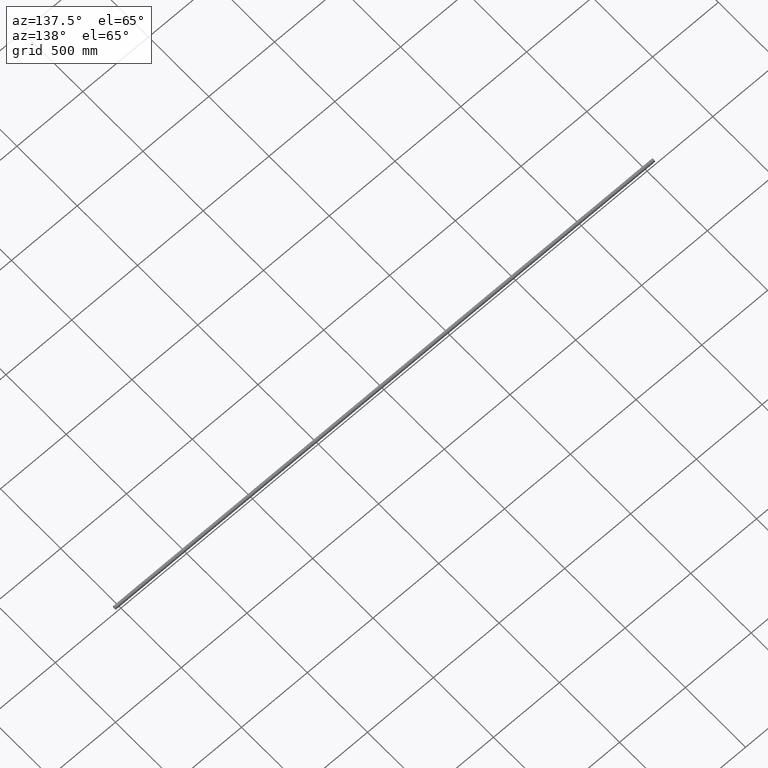
[diagram: clean part render]
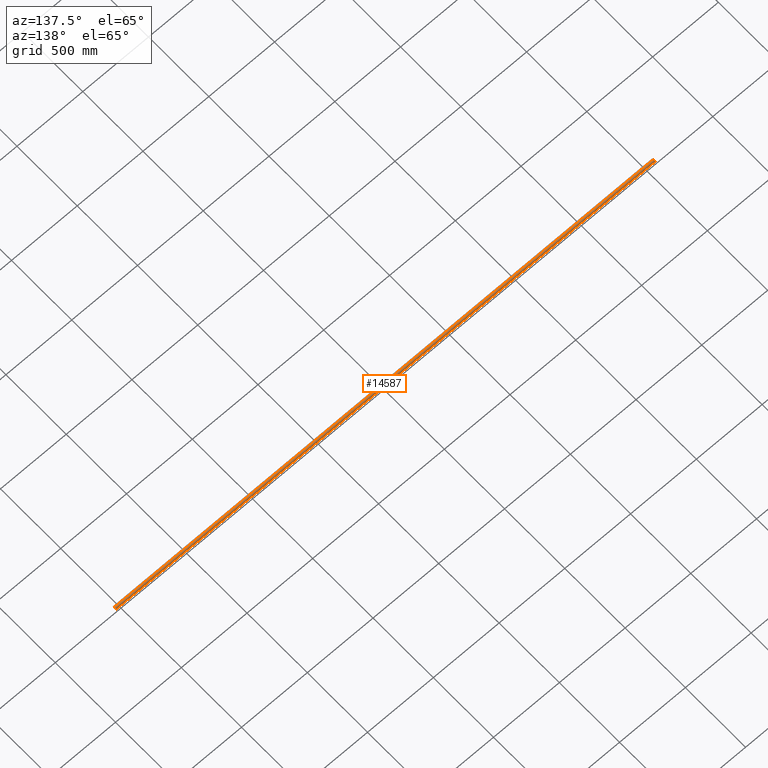
[diagram: same view with one face highlighted and labeled with its STEP entity id]
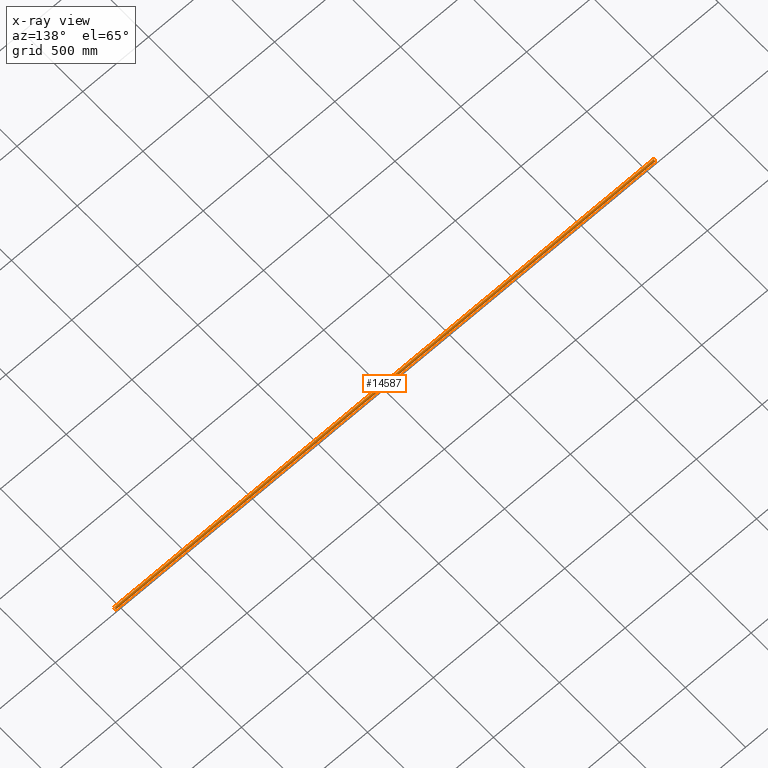
[diagram: x-ray of the same camera — body ghosted, the highlighted face saturated]
A machine part, auxiliary view. The second image highlights one B-rep face of the part: STEP entity #14587.
The next image is the same camera in x-ray: the body ghosted, the highlighted face saturated — about 0% of this face is hidden behind the body in this view.
In plain terms, the highlighted cylindrical surface (edge-blend (fillet) strip) has radius 12.5 mm, axis along (-1, -0, -0).
Its self-contained STEP definition (entity closure, byte-faithful):
#135 = CARTESIAN_POINT ( 'NONE',  ( 1879.555185361212400, 3.378139508022424600, -12.03495784066944600 ) ) ;
#379 = VERTEX_POINT ( 'NONE', #5927 ) ;
#427 = DIRECTION ( 'NONE',  ( -1.000000000000000000, -0.0000000000000000000, -0.0000000000000000000 ) ) ;
#707 = B_SPLINE_CURVE_WITH_KNOTS ( 'NONE', 3,
 ( #10632, #11692, #2149, #9310, #11746, #10578, #2294, #15306, #8070, #3405, #9264, #4516, #10525, #12975, #12921, #14165, #6928, #1287, #6139, #1226, #3664, #7132, #9617, #12060, #13234, #15561, #8423, #4866, #10778, #13285, #7286, #14578, #6027, #4712 ),
 .UNSPECIFIED., .F., .F.,
 ( 4, 2, 2, 2, 2, 2, 2, 2, 2, 2, 2, 2, 2, 2, 2, 2, 4 ),
 ( 0.01068048760817239500, 0.01134783680047168500, 0.01201518599277097800, 0.01268253518507026800, 0.01334988437736955900, 0.01401723356966884900, 0.01468458276196813900, 0.01535193195426743000, 0.01601928114656672000, 0.01668663033886601300, 0.01735397953116530100, 0.01802132872346459300, 0.01868867791576388200, 0.01935602710806317400, 0.02002337630036246700, 0.02069072549266175900, 0.02135807468496104700 ),
 .UNSPECIFIED. ) ;
#775 = CARTESIAN_POINT ( 'NONE',  ( -941.7041004218791600, 2.950570385327931700, -12.14744228481905900 ) ) ;
#780 = VERTEX_POINT ( 'NONE', #9551 ) ;
#830 = CARTESIAN_POINT ( 'NONE',  ( 939.5551853612123500, 3.378139508022326000, -12.03495784066947700 ) ) ;
#856 = CARTESIAN_POINT ( 'NONE',  ( -1881.704100421878800, 2.950570385328055200, -12.14744228481902900 ) ) ;
#888 = CARTESIAN_POINT ( 'NONE',  ( 942.9483656953227600, 1.707719232637206600, -12.38420091696254300 ) ) ;
#911 = CARTESIAN_POINT ( 'NONE',  ( -1883.377737069944000, 0.4480304431356929000, -12.49389157976499500 ) ) ;
#936 = CARTESIAN_POINT ( 'NONE',  ( 942.5616062947975700, 2.246627044520512300, -12.29748777373637700 ) ) ;
#963 = CARTESIAN_POINT ( 'NONE',  ( -1877.438393705202500, 2.246627044520734800, -12.29748777373633400 ) ) ;
#1011 = ORIENTED_EDGE ( 'NONE', *, *, #12591, .T. ) ;
#1035 = CARTESIAN_POINT ( 'NONE',  ( 1883.399999999999900, 1.530817149939125600E-015, -12.50000000000000000 ) ) ;
#1045 = CARTESIAN_POINT ( 'NONE',  ( -937.4383937052024300, 2.246627044520512300, -12.29748777373637700 ) ) ;
#1097 = CARTESIAN_POINT ( 'NONE',  ( -938.4871822743166400, 3.053142613515797500, -12.12172586120244800 ) ) ;
#1130 = CARTESIAN_POINT ( 'NONE',  ( 1881.707697899845900, 2.948301563049428700, -12.14797926367841200 ) ) ;
#1140 = CARTESIAN_POINT ( 'NONE',  ( -937.7518609685736200, 2.560279434377374500, -12.23603317420604600 ) ) ;
#1210 = CARTESIAN_POINT ( 'NONE',  ( 1876.599999999999900, -9.932824226667062300E-015, -12.50000000000000000 ) ) ;
#1226 = CARTESIAN_POINT ( 'NONE',  ( -0.8820550147423875700, 3.291149578720026400, -12.05903691066762000 ) ) ;
#1287 = CARTESIAN_POINT ( 'NONE',  ( -0.2234455537290499200, 3.400048205355200800, -12.02870201658427800 ) ) ;
#1404 = DIRECTION ( 'NONE',  ( 0.0000000000000000000, 0.0000000000000000000, 1.000000000000000000 ) ) ;
#1660 = EDGE_CURVE ( 'NONE', #7770, #9793, #6886, .T. ) ;
#1718 = VECTOR ( 'NONE', #7351, 1000.000000000000000 ) ;
#1733 = LINE ( 'NONE', #9927, #4185 ) ;
#1880 = CARTESIAN_POINT ( 'NONE',  ( 2050.000000000000000, 0.0000000000000000000, 0.0000000000000000000 ) ) ;
#1948 = CARTESIAN_POINT ( 'NONE',  ( -936.7098970917934400, 0.8865257729732174400, -12.47048403254628500 ) ) ;
#1951 = CARTESIAN_POINT ( 'NONE',  ( 943.4000000000000900, 0.2224906580846630300, -12.50000000000000000 ) ) ;
#1970 = VERTEX_POINT ( 'NONE', #13478 ) ;
#2007 = CARTESIAN_POINT ( 'NONE',  ( -940.8820550147422600, 3.291149578720000200, -12.05903691066762600 ) ) ;
#2011 = CARTESIAN_POINT ( 'NONE',  ( 941.5128177256830200, 3.053142613515797500, -12.12172586120244800 ) ) ;
#2115 = CARTESIAN_POINT ( 'NONE',  ( 936.9467577992729700, 1.512253423253397500, -12.40989427573226300 ) ) ;
#2140 = CARTESIAN_POINT ( 'NONE',  ( 2050.000000000000000, 1.530808498934191500E-015, -12.50000000000000000 ) ) ;
#2149 = CARTESIAN_POINT ( 'NONE',  ( 3.378280758540311600, 0.4448867375077679700, -12.49403760771222100 ) ) ;
#2164 = CARTESIAN_POINT ( 'NONE',  ( 1881.512817725682900, 3.053142613515909000, -12.12172586120242100 ) ) ;
#2193 = CARTESIAN_POINT ( 'NONE',  ( -1879.114633743551200, 3.290199395220273700, -12.05929658612620200 ) ) ;
#2283 = EDGE_CURVE ( 'NONE', #15213, #1970, #12888, .T. ) ;
#2287 = FACE_OUTER_BOUND ( 'NONE', #6494, .T. ) ;
#2294 = CARTESIAN_POINT ( 'NONE',  ( 2.948365695323054600, 1.707719232637258800, -12.38420091696254100 ) ) ;
#2362 = CARTESIAN_POINT ( 'NONE',  ( 1882.561606294797700, 2.246627044520734800, -12.29748777373633400 ) ) ;
#2466 = DIRECTION ( 'NONE',  ( -1.000000000000000000, -0.0000000000000000000, -0.0000000000000000000 ) ) ;
#2484 = EDGE_CURVE ( 'NONE', #1970, #2924, #9575, .T. ) ;
#2691 = VECTOR ( 'NONE', #14098, 1000.000000000000000 ) ;
#2790 = LINE ( 'NONE', #8701, #7315 ) ;
#2924 = VERTEX_POINT ( 'NONE', #8900 ) ;
#2995 = EDGE_CURVE ( 'NONE', #379, #6547, #6219, .T. ) ;
#3128 = VERTEX_POINT ( 'NONE', #8077 ) ;
#3134 = ORIENTED_EDGE ( 'NONE', *, *, #6398, .T. ) ;
#3221 = CARTESIAN_POINT ( 'NONE',  ( -942.9488224034905700, 1.707024174918659000, -12.38430592481709500 ) ) ;
#3223 = CARTESIAN_POINT ( 'NONE',  ( 936.6000000000000200, 1.240253457150525300E-014, -12.50000000000000000 ) ) ;
#3244 = CARTESIAN_POINT ( 'NONE',  ( -1881.099029707848800, 3.225114317319371700, -12.07710089060663700 ) ) ;
#3274 = CARTESIAN_POINT ( 'NONE',  ( 941.7076978998460400, 2.948301563049304400, -12.14797926367844400 ) ) ;
#3298 = CARTESIAN_POINT ( 'NONE',  ( -1879.775089838301500, 3.399951636918634900, -12.02872931232272400 ) ) ;
#3327 = CARTESIAN_POINT ( 'NONE',  ( 940.8853662564488300, 3.290199395220138700, -12.05929658612623900 ) ) ;
#3351 = CARTESIAN_POINT ( 'NONE',  ( -1878.901327185809100, 3.225401577628083300, -12.07703201683446500 ) ) ;
#3372 = CARTESIAN_POINT ( 'NONE',  ( 1880.885366256448800, 3.290199395220273700, -12.05929658612620200 ) ) ;
#3402 = CARTESIAN_POINT ( 'NONE',  ( -1880.444814638787900, 3.378139508022424600, -12.03495784066944600 ) ) ;
#3405 = CARTESIAN_POINT ( 'NONE',  ( 2.248139031426001900, 2.560279434377429600, -12.23603317420603700 ) ) ;
#3419 = CARTESIAN_POINT ( 'NONE',  ( 1882.701596913804900, 2.076183846916918700, -12.32778155075017400 ) ) ;
#3475 = CARTESIAN_POINT ( 'NONE',  ( 1883.399999999999600, 0.2224906580846714400, -12.50000000000000000 ) ) ;
#3487 = CARTESIAN_POINT ( 'NONE',  ( -942.2469418888275600, 2.561224429050289700, -12.23582231181098500 ) ) ;
#3581 = CARTESIAN_POINT ( 'NONE',  ( -939.1146337435510500, 3.290199395220138700, -12.05929658612623900 ) ) ;
#3664 = CARTESIAN_POINT ( 'NONE',  ( -1.099029707848881500, 3.225114317319354400, -12.07710089060664600 ) ) ;
#3677 = CARTESIAN_POINT ( 'NONE',  ( 1876.622262930056400, 0.4480304431356929000, -12.49389157976499500 ) ) ;
#3726 = CARTESIAN_POINT ( 'NONE',  ( 1879.776554446271100, 3.400048205355289600, -12.02870201658424800 ) ) ;
#3728 = VERTEX_POINT ( 'NONE', #12229 ) ;
#3775 = CARTESIAN_POINT ( 'NONE',  ( 1877.441070737253500, 2.249555390737002700, -12.29693940646133000 ) ) ;
#3841 = ORIENTED_EDGE ( 'NONE', *, *, #1660, .T. ) ;
#4173 = VECTOR ( 'NONE', #12690, 1000.000000000000000 ) ;
#4185 = VECTOR ( 'NONE', #427, 1000.000000000000000 ) ;
#4208 = ORIENTED_EDGE ( 'NONE', *, *, #2484, .T. ) ;
#4397 = ORIENTED_EDGE ( 'NONE', *, *, #11843, .T. ) ;
#4424 = CARTESIAN_POINT ( 'NONE',  ( -943.3777370699432400, 0.4480304431356896300, -12.49389157976499500 ) ) ;
#4454 = CARTESIAN_POINT ( 'NONE',  ( -1877.925459137238700, 2.702775320397860600, -12.20495341510522500 ) ) ;
#4482 = CARTESIAN_POINT ( 'NONE',  ( 937.2987356385385700, 2.076693513877929200, -12.32770492924915700 ) ) ;
#4509 = CARTESIAN_POINT ( 'NONE',  ( -1882.246941888827700, 2.561224429050425100, -12.23582231181095600 ) ) ;
#4516 = CARTESIAN_POINT ( 'NONE',  ( 1.707697899846059700, 2.948301563049316300, -12.14797926367844200 ) ) ;
#4535 = CARTESIAN_POINT ( 'NONE',  ( 943.3999999999998600, 1.530817147818667500E-015, -12.50000000000000000 ) ) ;
#4610 = CARTESIAN_POINT ( 'NONE',  ( -1882.701264361461700, 2.076693513877993600, -12.32770492924914200 ) ) ;
#4691 = CARTESIAN_POINT ( 'NONE',  ( -2050.000000000000000, 0.0000000000000000000, 0.0000000000000000000 ) ) ;
#4712 = CARTESIAN_POINT ( 'NONE',  ( -3.399999999999987900, -3.085611381634476200E-019, -12.50000000000000000 ) ) ;
#4738 = CARTESIAN_POINT ( 'NONE',  ( -937.9254591372384800, 2.702775320397728700, -12.20495341510524800 ) ) ;
#4788 = EDGE_CURVE ( 'NONE', #379, #3728, #2790, .T. ) ;
#4866 = CARTESIAN_POINT ( 'NONE',  ( -2.948822403490601700, 1.707024174918695600, -12.38430592481708800 ) ) ;
#4882 = CARTESIAN_POINT ( 'NONE',  ( 1877.298735638538300, 2.076693513877993600, -12.32770492924914200 ) ) ;
#4982 = CARTESIAN_POINT ( 'NONE',  ( 1876.600000000000100, 0.2257309346313159700, -12.50000000000000200 ) ) ;
#5013 = ORIENTED_EDGE ( 'NONE', *, *, #5079, .F. ) ;
#5079 = EDGE_CURVE ( 'NONE', #6547, #6556, #5115, .T. ) ;
#5115 = LINE ( 'NONE', #15175, #4173 ) ;
#5421 = ORIENTED_EDGE ( 'NONE', *, *, #10916, .T. ) ;
#5497 = ORIENTED_EDGE ( 'NONE', *, *, #2283, .T. ) ;
#5600 = CARTESIAN_POINT ( 'NONE',  ( -1876.945038702638800, 1.508773953162735800, -12.41031890877709300 ) ) ;
#5656 = CARTESIAN_POINT ( 'NONE',  ( -1878.292302100153600, 2.948301563049428700, -12.14797926367841200 ) ) ;
#5682 = CARTESIAN_POINT ( 'NONE',  ( 936.7098464286037800, 0.8858490098629775400, -12.47049837081998000 ) ) ;
#5687 = DIRECTION ( 'NONE',  ( 1.000000000000000000, 0.0000000000000000000, 0.0000000000000000000 ) ) ;
#5743 = CARTESIAN_POINT ( 'NONE',  ( 936.6222629300563100, 0.4480304431356896300, -12.49389157976499500 ) ) ;
#5817 = CARTESIAN_POINT ( 'NONE',  ( -1882.558929262746200, 2.249555390737002700, -12.29693940646133000 ) ) ;
#5896 = CARTESIAN_POINT ( 'NONE',  ( -936.6217192414598000, 0.4448867375077629700, -12.49403760771221900 ) ) ;
#5927 = CARTESIAN_POINT ( 'NONE',  ( 2050.000000000000000, 1.530808498934191500E-015, -12.50000000000000000 ) ) ;
#5937 = CARTESIAN_POINT ( 'NONE',  ( 1883.054961297361600, 1.508773953162735800, -12.41031890877709300 ) ) ;
#5947 = CARTESIAN_POINT ( 'NONE',  ( -943.2901535713963300, 0.8858490098629775400, -12.47049837081998000 ) ) ;
#6027 = CARTESIAN_POINT ( 'NONE',  ( -3.399999999999987900, 0.2257309346313096400, -12.50000000000000400 ) ) ;
#6067 = ORIENTED_EDGE ( 'NONE', *, *, #12801, .T. ) ;
#6135 = AXIS2_PLACEMENT_3D ( 'NONE', #10947, #2466, #1404 ) ;
#6139 = CARTESIAN_POINT ( 'NONE',  ( -0.4448146387875762100, 3.378139508022349500, -12.03495784066947200 ) ) ;
#6219 = CIRCLE ( 'NONE', #9659, 12.50000000000000000 ) ;
#6245 = CARTESIAN_POINT ( 'NONE',  ( 2050.000000000000000, 1.530808498934191500E-015, -12.50000000000000000 ) ) ;
#6398 = EDGE_CURVE ( 'NONE', #7303, #13337, #6895, .T. ) ;
#6424 = CARTESIAN_POINT ( 'NONE',  ( 2050.000000000000000, 1.530808498934191500E-015, -12.50000000000000000 ) ) ;
#6494 = EDGE_LOOP ( 'NONE', ( #14280, #8406, #1011, #6067, #3841, #7011, #4397, #5421, #3134, #14724, #5497, #4208, #8769, #5013 ) ) ;
#6535 = CARTESIAN_POINT ( 'NONE',  ( -943.3999999999998600, 1.240253457150525300E-014, -12.50000000000000000 ) ) ;
#6547 = VERTEX_POINT ( 'NONE', #7869 ) ;
#6556 = VERTEX_POINT ( 'NONE', #13995 ) ;
#6723 = DIRECTION ( 'NONE',  ( 0.0000000000000000000, 0.0000000000000000000, -1.000000000000000000 ) ) ;
#6789 = CARTESIAN_POINT ( 'NONE',  ( -940.2234455537291100, 3.400048205355171500, -12.02870201658427800 ) ) ;
#6816 = CARTESIAN_POINT ( 'NONE',  ( -1883.400000000000100, 0.2257309346313159700, -12.50000000000000200 ) ) ;
#6848 = CARTESIAN_POINT ( 'NONE',  ( 943.2250748562823900, 1.099126717669559800, -12.45328610117817200 ) ) ;
#6870 = CARTESIAN_POINT ( 'NONE',  ( -1880.882055014742500, 3.291149578720083300, -12.05903691066760100 ) ) ;
#6886 = B_SPLINE_CURVE_WITH_KNOTS ( 'NONE', 3,
 ( #4535, #1951, #10547, #8140, #6848, #10491, #888, #9181, #936, #12833, #14074, #3274, #2011, #7934, #3327, #15275, #11715, #12941, #830, #11660, #10384, #14131, #11766, #8087, #9130, #15223, #4482, #9281, #2115, #12889, #5682, #5743, #9232, #3223 ),
 .UNSPECIFIED., .F., .F.,
 ( 4, 2, 2, 2, 2, 2, 2, 2, 2, 2, 2, 2, 2, 2, 2, 2, 4 ),
 ( 0.01068048760817228200, 0.01134783680047156600, 0.01201518599277084900, 0.01268253518507013100, 0.01334988437736941500, 0.01401723356966869800, 0.01468458276196798000, 0.01535193195426726300, 0.01601928114656654700, 0.01668663033886583200, 0.01735397953116511400, 0.01802132872346439600, 0.01868867791576368100, 0.01935602710806296300, 0.02002337630036224400, 0.02069072549266153000, 0.02135807468496081100 ),
 .UNSPECIFIED. ) ;
#6895 = B_SPLINE_CURVE_WITH_KNOTS ( 'NONE', 3,
 ( #8390, #8341, #5896, #1948, #11924, #11543, #10328, #7104, #1045, #1140, #4738, #12782, #1097, #14015, #3581, #15484, #10657, #6789, #15220, #2007, #7982, #10707, #775, #9546, #3487, #9179, #15587, #3221, #13160, #9436, #5947, #4424, #12830, #14070 ),
 .UNSPECIFIED., .F., .F.,
 ( 4, 2, 2, 2, 2, 2, 2, 2, 2, 2, 2, 2, 2, 2, 2, 2, 4 ),
 ( 0.01068048760817228200, 0.01134783680047156600, 0.01201518599277084900, 0.01268253518507013100, 0.01334988437736941500, 0.01401723356966869800, 0.01468458276196798000, 0.01535193195426726300, 0.01601928114656654700, 0.01668663033886583200, 0.01735397953116511400, 0.01802132872346439600, 0.01868867791576368100, 0.01935602710806296300, 0.02002337630036224400, 0.02069072549266153000, 0.02135807468496081100 ),
 .UNSPECIFIED. ) ;
#6924 = CARTESIAN_POINT ( 'NONE',  ( -1883.053242200726800, 1.512253423253430800, -12.40989427573225600 ) ) ;
#6928 = CARTESIAN_POINT ( 'NONE',  ( 0.2249101616983749900, 3.399951636918561200, -12.02872931232274900 ) ) ;
#6971 = CARTESIAN_POINT ( 'NONE',  ( -1876.599999999999900, 1.530817149939125600E-015, -12.50000000000000000 ) ) ;
#6985 = CARTESIAN_POINT ( 'NONE',  ( 1883.378280758539900, 0.4448867375077864000, -12.49403760771221700 ) ) ;
#7011 = ORIENTED_EDGE ( 'NONE', *, *, #14601, .T. ) ;
#7015 = DIRECTION ( 'NONE',  ( -1.000000000000000000, -0.0000000000000000000, -0.0000000000000000000 ) ) ;
#7055 = DIRECTION ( 'NONE',  ( 0.0000000000000000000, 0.0000000000000000000, -1.000000000000000000 ) ) ;
#7104 = CARTESIAN_POINT ( 'NONE',  ( -937.2984030861953200, 2.076183846916757900, -12.32778155075019700 ) ) ;
#7132 = CARTESIAN_POINT ( 'NONE',  ( -1.508849422108623300, 3.054930781526016500, -12.12126751630187000 ) ) ;
#7158 = VECTOR ( 'NONE', #8866, 1000.000000000000000 ) ;
#7286 = CARTESIAN_POINT ( 'NONE',  ( -3.290153571396316600, 0.8858490098629751000, -12.47049837081998200 ) ) ;
#7303 = VERTEX_POINT ( 'NONE', #13525 ) ;
#7315 = VECTOR ( 'NONE', #12672, 1000.000000000000000 ) ;
#7342 = EDGE_CURVE ( 'NONE', #2924, #6556, #7824, .T. ) ;
#7351 = DIRECTION ( 'NONE',  ( -1.000000000000000000, -0.0000000000000000000, -0.0000000000000000000 ) ) ;
#7405 = CARTESIAN_POINT ( 'NONE',  ( 1878.295899578121000, 2.950570385328055200, -12.14744228481902900 ) ) ;
#7587 = CARTESIAN_POINT ( 'NONE',  ( 936.6000000000000200, 1.240253457150525300E-014, -12.50000000000000000 ) ) ;
#7770 = VERTEX_POINT ( 'NONE', #7851 ) ;
#7824 = CIRCLE ( 'NONE', #15043, 12.50000000000000000 ) ;
#7840 = EDGE_CURVE ( 'NONE', #13337, #15213, #12512, .T. ) ;
#7851 = CARTESIAN_POINT ( 'NONE',  ( 943.3999999999998600, 1.530817147818667500E-015, -12.50000000000000000 ) ) ;
#7869 = CARTESIAN_POINT ( 'NONE',  ( 2050.000000000000000, 0.0000000000000000000, 12.50000000000000000 ) ) ;
#7934 = CARTESIAN_POINT ( 'NONE',  ( 941.0986728141909900, 3.225401577627969600, -12.07703201683448800 ) ) ;
#7982 = CARTESIAN_POINT ( 'NONE',  ( -941.0990297078489000, 3.225114317319322000, -12.07710089060665500 ) ) ;
#8010 = CARTESIAN_POINT ( 'NONE',  ( -1883.223838328143300, 1.102753275414796000, -12.45296436855723100 ) ) ;
#8064 = CARTESIAN_POINT ( 'NONE',  ( -1877.051634304677000, 1.707719232637369100, -12.38420091696252900 ) ) ;
#8070 = CARTESIAN_POINT ( 'NONE',  ( 2.561606294797429000, 2.246627044520570000, -12.29748777373636600 ) ) ;
#8077 = CARTESIAN_POINT ( 'NONE',  ( 3.399999999999987900, 1.530817148184698900E-015, -12.50000000000000000 ) ) ;
#8087 = CARTESIAN_POINT ( 'NONE',  ( 937.9247742211100600, 2.702454775431625000, -12.20503821577511700 ) ) ;
#8110 = CARTESIAN_POINT ( 'NONE',  ( -1876.600000000000100, 0.2224906580846714400, -12.50000000000000000 ) ) ;
#8140 = CARTESIAN_POINT ( 'NONE',  ( 943.2901029082065600, 0.8865257729732174400, -12.47048403254628500 ) ) ;
#8159 = CARTESIAN_POINT ( 'NONE',  ( 2050.000000000000000, 1.530808498934191500E-015, -12.50000000000000000 ) ) ;
#8331 = CARTESIAN_POINT ( 'NONE',  ( 1882.074540862761100, 2.702775320397860600, -12.20495341510522500 ) ) ;
#8341 = CARTESIAN_POINT ( 'NONE',  ( -936.6000000000000200, 0.2224906580846630300, -12.50000000000000000 ) ) ;
#8390 = CARTESIAN_POINT ( 'NONE',  ( -936.6000000000000200, 1.530817147818667500E-015, -12.50000000000000000 ) ) ;
#8406 = ORIENTED_EDGE ( 'NONE', *, *, #4788, .T. ) ;
#8423 = CARTESIAN_POINT ( 'NONE',  ( -2.701264361461520800, 2.076693513877970500, -12.32770492924914400 ) ) ;
#8439 = CARTESIAN_POINT ( 'NONE',  ( 1877.924774221109800, 2.702454775431760900, -12.20503821577508900 ) ) ;
#8538 = CARTESIAN_POINT ( 'NONE',  ( 1877.753058111172300, 2.561224429050425100, -12.23582231181095600 ) ) ;
#8583 = CARTESIAN_POINT ( 'NONE',  ( 1880.224910161698700, 3.399951636918634900, -12.02872931232272400 ) ) ;
#8701 = CARTESIAN_POINT ( 'NONE',  ( 2050.000000000000000, 1.530808498934191500E-015, -12.50000000000000000 ) ) ;
#8769 = ORIENTED_EDGE ( 'NONE', *, *, #7342, .T. ) ;
#8866 = DIRECTION ( 'NONE',  ( -1.000000000000000000, -0.0000000000000000000, -0.0000000000000000000 ) ) ;
#8900 = CARTESIAN_POINT ( 'NONE',  ( -2050.000000000000000, 1.530808498934191500E-015, -12.50000000000000000 ) ) ;
#9130 = CARTESIAN_POINT ( 'NONE',  ( 937.7530581111723200, 2.561224429050289700, -12.23582231181098500 ) ) ;
#9179 = CARTESIAN_POINT ( 'NONE',  ( -942.5589292627460100, 2.249555390736871300, -12.29693940646135500 ) ) ;
#9181 = CARTESIAN_POINT ( 'NONE',  ( 942.7015969138045600, 2.076183846916757900, -12.32778155075019700 ) ) ;
#9184 = VERTEX_POINT ( 'NONE', #1210 ) ;
#9232 = CARTESIAN_POINT ( 'NONE',  ( 936.5999999999996800, 0.2257309346313073600, -12.49999999999999800 ) ) ;
#9254 = CARTESIAN_POINT ( 'NONE',  ( -1876.774925143717600, 1.099126717669656000, -12.45328610117816300 ) ) ;
#9264 = CARTESIAN_POINT ( 'NONE',  ( 2.074540862761341800, 2.702775320397742000, -12.20495341510525300 ) ) ;
#9281 = CARTESIAN_POINT ( 'NONE',  ( 937.0511775965093200, 1.707024174918659000, -12.38430592481709500 ) ) ;
#9310 = CARTESIAN_POINT ( 'NONE',  ( 3.290102908206402600, 0.8865257729732264300, -12.47048403254628100 ) ) ;
#9356 = CARTESIAN_POINT ( 'NONE',  ( -1878.487182274316600, 3.053142613515909000, -12.12172586120242100 ) ) ;
#9436 = CARTESIAN_POINT ( 'NONE',  ( -943.2238383281429600, 1.102753275414778200, -12.45296436855722700 ) ) ;
#9546 = CARTESIAN_POINT ( 'NONE',  ( -942.0752257788898300, 2.702454775431625000, -12.20503821577511700 ) ) ;
#9551 = CARTESIAN_POINT ( 'NONE',  ( -3.399999999999987900, -3.085611381634476200E-019, -12.50000000000000000 ) ) ;
#9575 = LINE ( 'NONE', #6424, #7158 ) ;
#9617 = CARTESIAN_POINT ( 'NONE',  ( -1.704100421879114700, 2.950570385327913000, -12.14744228481906400 ) ) ;
#9659 = AXIS2_PLACEMENT_3D ( 'NONE', #1880, #12550, #6723 ) ;
#9684 = CARTESIAN_POINT ( 'NONE',  ( 1877.051177596509000, 1.707024174918713200, -12.38430592481708500 ) ) ;
#9734 = CARTESIAN_POINT ( 'NONE',  ( 1879.117944985257500, 3.291149578720083300, -12.05903691066760100 ) ) ;
#9793 = VERTEX_POINT ( 'NONE', #7587 ) ;
#9927 = CARTESIAN_POINT ( 'NONE',  ( 2050.000000000000000, 1.530808498934191500E-015, -12.50000000000000000 ) ) ;
#10328 = CARTESIAN_POINT ( 'NONE',  ( -937.0516343046766700, 1.707719232637206600, -12.38420091696254300 ) ) ;
#10384 = CARTESIAN_POINT ( 'NONE',  ( 938.9009702921511000, 3.225114317319322000, -12.07710089060665500 ) ) ;
#10463 = CARTESIAN_POINT ( 'NONE',  ( -1876.621719241459700, 0.4448867375077864000, -12.49403760771221700 ) ) ;
#10491 = CARTESIAN_POINT ( 'NONE',  ( 943.0549612973612700, 1.508773953162621000, -12.41031890877710200 ) ) ;
#10525 = CARTESIAN_POINT ( 'NONE',  ( 1.512817725683325700, 3.053142613515821100, -12.12172586120244100 ) ) ;
#10539 = CARTESIAN_POINT ( 'NONE',  ( 1881.098672814191300, 3.225401577628083300, -12.07703201683446500 ) ) ;
#10547 = CARTESIAN_POINT ( 'NONE',  ( 943.3782807585404300, 0.4448867375077629700, -12.49403760771221900 ) ) ;
#10571 = CARTESIAN_POINT ( 'NONE',  ( -1877.751860968574000, 2.560279434377590300, -12.23603317420600000 ) ) ;
#10578 = CARTESIAN_POINT ( 'NONE',  ( 3.054961297361529200, 1.508773953162645000, -12.41031890877710400 ) ) ;
#10627 = CARTESIAN_POINT ( 'NONE',  ( -1879.549994764956400, 3.377392597374443600, -12.03516786154905600 ) ) ;
#10632 = CARTESIAN_POINT ( 'NONE',  ( 3.399999999999987900, 1.530817148184698900E-015, -12.50000000000000000 ) ) ;
#10657 = CARTESIAN_POINT ( 'NONE',  ( -939.7750898383016000, 3.399951636918531000, -12.02872931232275500 ) ) ;
#10707 = CARTESIAN_POINT ( 'NONE',  ( -941.5088494221088200, 3.054930781525983600, -12.12126751630187900 ) ) ;
#10778 = CARTESIAN_POINT ( 'NONE',  ( -3.053242200727046100, 1.512253423253419500, -12.40989427573226000 ) ) ;
#10916 = EDGE_CURVE ( 'NONE', #780, #7303, #14586, .T. ) ;
#10917 = CYLINDRICAL_SURFACE ( 'NONE', #6135, 12.50000000000000000 ) ;
#10947 = CARTESIAN_POINT ( 'NONE',  ( 2050.000000000000000, 0.0000000000000000000, 0.0000000000000000000 ) ) ;
#11543 = CARTESIAN_POINT ( 'NONE',  ( -936.9450387026383900, 1.508773953162621000, -12.41031890877710200 ) ) ;
#11629 = CARTESIAN_POINT ( 'NONE',  ( -1876.709897091792500, 0.8865257729732701800, -12.47048403254627800 ) ) ;
#11660 = CARTESIAN_POINT ( 'NONE',  ( 939.1179449852576200, 3.291149578720000200, -12.05903691066762600 ) ) ;
#11692 = CARTESIAN_POINT ( 'NONE',  ( 3.399999999999988400, 0.2224906580846638700, -12.50000000000000200 ) ) ;
#11715 = CARTESIAN_POINT ( 'NONE',  ( 940.2249101616984000, 3.399951636918531000, -12.02872931232275500 ) ) ;
#11746 = CARTESIAN_POINT ( 'NONE',  ( 3.225074856282216000, 1.099126717669580500, -12.45328610117816800 ) ) ;
#11761 = CARTESIAN_POINT ( 'NONE',  ( 1880.450005235042900, 3.377392597374443600, -12.03516786154905600 ) ) ;
#11766 = CARTESIAN_POINT ( 'NONE',  ( 938.2958995781209500, 2.950570385327931700, -12.14744228481905900 ) ) ;
#11793 = CARTESIAN_POINT ( 'NONE',  ( -1882.075225778889500, 2.702454775431760900, -12.20503821577508900 ) ) ;
#11843 = EDGE_CURVE ( 'NONE', #3128, #780, #707, .T. ) ;
#11917 = CARTESIAN_POINT ( 'NONE',  ( 1883.290102908205700, 0.8865257729732701800, -12.47048403254627800 ) ) ;
#11924 = CARTESIAN_POINT ( 'NONE',  ( -936.7749251437177200, 1.099126717669559800, -12.45328610117817200 ) ) ;
#12060 = CARTESIAN_POINT ( 'NONE',  ( -2.075225778890007700, 2.702454775431597100, -12.20503821577512800 ) ) ;
#12074 = CARTESIAN_POINT ( 'NONE',  ( 1878.900970292150300, 3.225114317319371700, -12.07710089060663700 ) ) ;
#12128 = CARTESIAN_POINT ( 'NONE',  ( 1878.491150577891600, 3.054930781526008100, -12.12126751630187900 ) ) ;
#12138 = VECTOR ( 'NONE', #7015, 1000.000000000000000 ) ;
#12229 = CARTESIAN_POINT ( 'NONE',  ( 1883.399999999999900, 1.530817149939125600E-015, -12.50000000000000000 ) ) ;
#12512 = LINE ( 'NONE', #8159, #12138 ) ;
#12550 = DIRECTION ( 'NONE',  ( 1.000000000000000000, 0.0000000000000000000, 0.0000000000000000000 ) ) ;
#12591 = EDGE_CURVE ( 'NONE', #3728, #9184, #12872, .T. ) ;
#12672 = DIRECTION ( 'NONE',  ( -1.000000000000000000, -0.0000000000000000000, -0.0000000000000000000 ) ) ;
#12690 = DIRECTION ( 'NONE',  ( -1.000000000000000000, -0.0000000000000000000, -0.0000000000000000000 ) ) ;
#12782 = CARTESIAN_POINT ( 'NONE',  ( -938.2923021001539600, 2.948301563049304400, -12.14797926367844400 ) ) ;
#12801 = EDGE_CURVE ( 'NONE', #9184, #7770, #1733, .T. ) ;
#12830 = CARTESIAN_POINT ( 'NONE',  ( -943.3999999999995200, 0.2257309346313073600, -12.49999999999999800 ) ) ;
#12833 = CARTESIAN_POINT ( 'NONE',  ( 942.2481390314256900, 2.560279434377374500, -12.23603317420604600 ) ) ;
#12857 = CARTESIAN_POINT ( 'NONE',  ( -1877.298403086195800, 2.076183846916918700, -12.32778155075017400 ) ) ;
#12872 = B_SPLINE_CURVE_WITH_KNOTS ( 'NONE', 3,
 ( #1035, #3475, #6985, #11917, #13096, #5937, #14392, #3419, #2362, #15577, #8331, #1130, #2164, #10539, #3372, #11761, #8583, #3726, #135, #9734, #12074, #12128, #7405, #8439, #8538, #3775, #4882, #9684, #14541, #13305, #13456, #3677, #4982, #14591 ),
 .UNSPECIFIED., .F., .F.,
 ( 4, 2, 2, 2, 2, 2, 2, 2, 2, 2, 2, 2, 2, 2, 2, 2, 4 ),
 ( 0.01068048760817264100, 0.01134783680047194900, 0.01201518599277125500, 0.01268253518507056500, 0.01334988437736987300, 0.01401723356966918000, 0.01468458276196848800, 0.01535193195426779600, 0.01601928114656710200, 0.01668663033886641500, 0.01735397953116572100, 0.01802132872346502700, 0.01868867791576433300, 0.01935602710806364300, 0.02002337630036294900, 0.02069072549266225800, 0.02135807468496156400 ),
 .UNSPECIFIED. ) ;
#12888 = B_SPLINE_CURVE_WITH_KNOTS ( 'NONE', 3,
 ( #6971, #8110, #10463, #11629, #9254, #5600, #8064, #12857, #963, #10571, #4454, #5656, #9356, #3351, #2193, #10627, #3298, #14099, #3402, #6870, #3244, #15457, #856, #11793, #4509, #5817, #4610, #12913, #6924, #8010, #13023, #911, #6816, #14266 ),
 .UNSPECIFIED., .F., .F.,
 ( 4, 2, 2, 2, 2, 2, 2, 2, 2, 2, 2, 2, 2, 2, 2, 2, 4 ),
 ( 0.01068048760817264100, 0.01134783680047194900, 0.01201518599277125500, 0.01268253518507056500, 0.01334988437736987300, 0.01401723356966918000, 0.01468458276196848800, 0.01535193195426779600, 0.01601928114656710200, 0.01668663033886641500, 0.01735397953116572100, 0.01802132872346502700, 0.01868867791576433300, 0.01935602710806364300, 0.02002337630036294900, 0.02069072549266225800, 0.02135807468496156400 ),
 .UNSPECIFIED. ) ;
#12889 = CARTESIAN_POINT ( 'NONE',  ( 936.7761616718567000, 1.102753275414778200, -12.45296436855722700 ) ) ;
#12913 = CARTESIAN_POINT ( 'NONE',  ( -1882.948822403490300, 1.707024174918713200, -12.38430592481708500 ) ) ;
#12921 = CARTESIAN_POINT ( 'NONE',  ( 0.8853662564486808300, 3.290199395220185800, -12.05929658612622800 ) ) ;
#12941 = CARTESIAN_POINT ( 'NONE',  ( 939.7765544462710100, 3.400048205355171500, -12.02870201658427800 ) ) ;
#12975 = CARTESIAN_POINT ( 'NONE',  ( 1.098672814191161000, 3.225401577627994500, -12.07703201683448700 ) ) ;
#13023 = CARTESIAN_POINT ( 'NONE',  ( -1883.290153571396100, 0.8858490098630040800, -12.47049837081997800 ) ) ;
#13096 = CARTESIAN_POINT ( 'NONE',  ( 1883.225074856281900, 1.099126717669656000, -12.45328610117816300 ) ) ;
#13160 = CARTESIAN_POINT ( 'NONE',  ( -943.0532422007270300, 1.512253423253397500, -12.40989427573226300 ) ) ;
#13197 = LINE ( 'NONE', #6245, #1718 ) ;
#13234 = CARTESIAN_POINT ( 'NONE',  ( -2.246941888827483700, 2.561224429050344800, -12.23582231181097100 ) ) ;
#13285 = CARTESIAN_POINT ( 'NONE',  ( -3.223838328143045800, 1.102753275414799100, -12.45296436855723100 ) ) ;
#13305 = CARTESIAN_POINT ( 'NONE',  ( 1876.776161671856900, 1.102753275414796000, -12.45296436855723100 ) ) ;
#13337 = VERTEX_POINT ( 'NONE', #6535 ) ;
#13456 = CARTESIAN_POINT ( 'NONE',  ( 1876.709846428603700, 0.8858490098630040800, -12.47049837081997800 ) ) ;
#13478 = CARTESIAN_POINT ( 'NONE',  ( -1883.399999999999900, -9.932824226667062300E-015, -12.50000000000000000 ) ) ;
#13525 = CARTESIAN_POINT ( 'NONE',  ( -936.6000000000000200, 1.530817147818667500E-015, -12.50000000000000000 ) ) ;
#13995 = CARTESIAN_POINT ( 'NONE',  ( -2050.000000000000000, 0.0000000000000000000, 12.50000000000000000 ) ) ;
#14015 = CARTESIAN_POINT ( 'NONE',  ( -938.9013271858086700, 3.225401577627969600, -12.07703201683448800 ) ) ;
#14070 = CARTESIAN_POINT ( 'NONE',  ( -943.3999999999998600, 1.240253457150525300E-014, -12.50000000000000000 ) ) ;
#14074 = CARTESIAN_POINT ( 'NONE',  ( 942.0745408627614100, 2.702775320397728700, -12.20495341510524800 ) ) ;
#14098 = DIRECTION ( 'NONE',  ( -1.000000000000000000, -0.0000000000000000000, -0.0000000000000000000 ) ) ;
#14099 = CARTESIAN_POINT ( 'NONE',  ( -1880.223445553729300, 3.400048205355289600, -12.02870201658424800 ) ) ;
#14131 = CARTESIAN_POINT ( 'NONE',  ( 938.4911505778914000, 3.054930781525983600, -12.12126751630187900 ) ) ;
#14165 = CARTESIAN_POINT ( 'NONE',  ( 0.4500052350430838700, 3.377392597374347700, -12.03516786154908400 ) ) ;
#14266 = CARTESIAN_POINT ( 'NONE',  ( -1883.399999999999900, -9.932824226667062300E-015, -12.50000000000000000 ) ) ;
#14280 = ORIENTED_EDGE ( 'NONE', *, *, #2995, .F. ) ;
#14392 = CARTESIAN_POINT ( 'NONE',  ( 1882.948365695323000, 1.707719232637369100, -12.38420091696252900 ) ) ;
#14541 = CARTESIAN_POINT ( 'NONE',  ( 1876.946757799273000, 1.512253423253430800, -12.40989427573225600 ) ) ;
#14578 = CARTESIAN_POINT ( 'NONE',  ( -3.377737069943542300, 0.4480304431356853000, -12.49389157976499100 ) ) ;
#14586 = LINE ( 'NONE', #2140, #2691 ) ;
#14587 = ADVANCED_FACE ( 'NONE', ( #2287 ), #10917, .T. ) ;
#14591 = CARTESIAN_POINT ( 'NONE',  ( 1876.599999999999900, -9.932824226667062300E-015, -12.50000000000000000 ) ) ;
#14601 = EDGE_CURVE ( 'NONE', #9793, #3128, #13197, .T. ) ;
#14724 = ORIENTED_EDGE ( 'NONE', *, *, #7840, .T. ) ;
#14896 = CARTESIAN_POINT ( 'NONE',  ( -1876.599999999999900, 1.530817149939125600E-015, -12.50000000000000000 ) ) ;
#15043 = AXIS2_PLACEMENT_3D ( 'NONE', #4691, #5687, #7055 ) ;
#15175 = CARTESIAN_POINT ( 'NONE',  ( 2050.000000000000000, 0.0000000000000000000, 12.50000000000000000 ) ) ;
#15213 = VERTEX_POINT ( 'NONE', #14896 ) ;
#15220 = CARTESIAN_POINT ( 'NONE',  ( -940.4448146387877600, 3.378139508022326000, -12.03495784066947700 ) ) ;
#15223 = CARTESIAN_POINT ( 'NONE',  ( 937.4410707372538800, 2.249555390736871300, -12.29693940646135500 ) ) ;
#15275 = CARTESIAN_POINT ( 'NONE',  ( 940.4500052350433600, 3.377392597374309100, -12.03516786154909300 ) ) ;
#15306 = CARTESIAN_POINT ( 'NONE',  ( 2.701596913804633600, 2.076183846916805500, -12.32778155075019200 ) ) ;
#15457 = CARTESIAN_POINT ( 'NONE',  ( -1881.508849422109700, 3.054930781526008100, -12.12126751630187900 ) ) ;
#15484 = CARTESIAN_POINT ( 'NONE',  ( -939.5499947649567500, 3.377392597374309100, -12.03516786154909300 ) ) ;
#15561 = CARTESIAN_POINT ( 'NONE',  ( -2.558929262746102700, 2.249555390736926800, -12.29693940646134300 ) ) ;
#15577 = CARTESIAN_POINT ( 'NONE',  ( 1882.248139031425800, 2.560279434377590300, -12.23603317420600000 ) ) ;
#15587 = CARTESIAN_POINT ( 'NONE',  ( -942.7012643614615400, 2.076693513877929200, -12.32770492924915700 ) ) ;